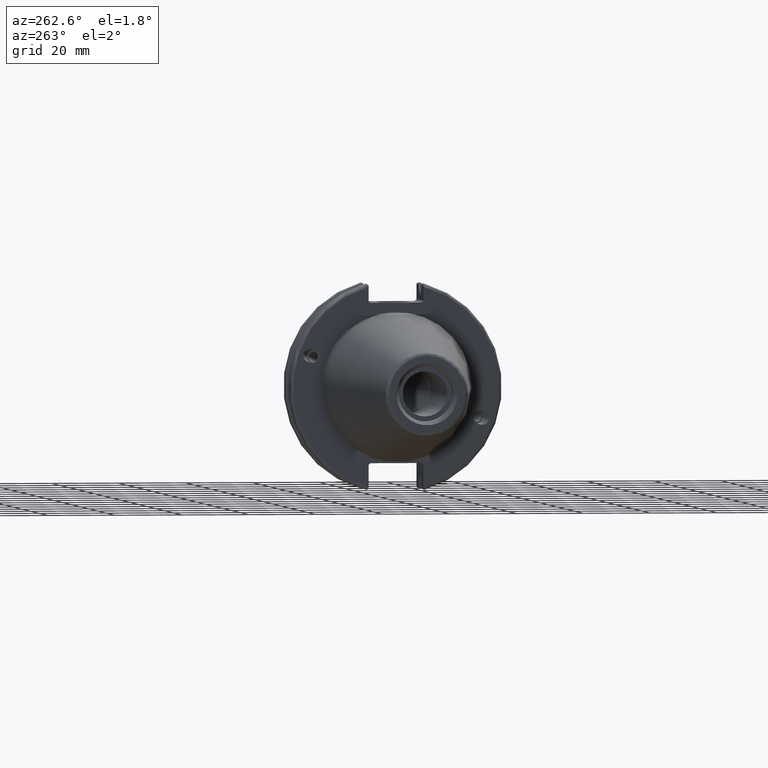
[diagram: clean part render]
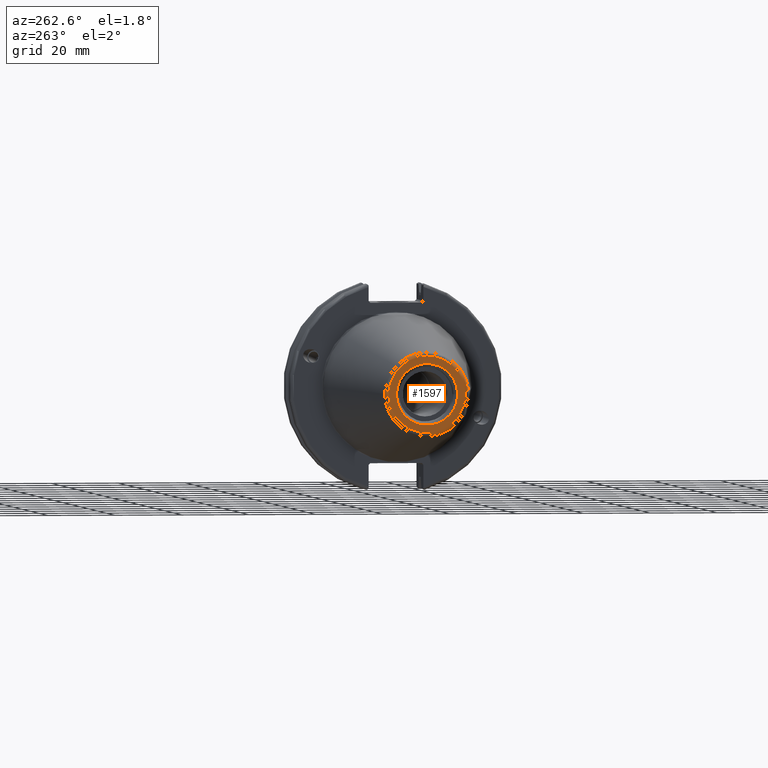
[diagram: same view with one face highlighted and labeled with its STEP entity id]
A machine part, auxiliary view. The second image highlights one B-rep face of the part: STEP entity #1597.
In plain terms, the highlighted planar face has unit normal (-1, 0, 0).
Its self-contained STEP definition (entity closure, byte-faithful):
#76=FACE_BOUND('',#343,.T.);
#99=PLANE('',#1793);
#236=FACE_OUTER_BOUND('',#342,.T.);
#342=EDGE_LOOP('',(#1387));
#343=EDGE_LOOP('',(#1388));
#632=CIRCLE('',#1792,11.4071305970304);
#633=CIRCLE('',#1794,9.15);
#791=VERTEX_POINT('',#3017);
#792=VERTEX_POINT('',#3021);
#1007=EDGE_CURVE('',#791,#791,#632,.T.);
#1008=EDGE_CURVE('',#792,#792,#633,.T.);
#1387=ORIENTED_EDGE('',*,*,#1007,.F.);
#1388=ORIENTED_EDGE('',*,*,#1008,.T.);
#1597=ADVANCED_FACE('',(#236,#76),#99,.T.);
#1792=AXIS2_PLACEMENT_3D('',#3019,#2200,#2201);
#1793=AXIS2_PLACEMENT_3D('',#3020,#2202,#2203);
#1794=AXIS2_PLACEMENT_3D('',#3022,#2204,#2205);
#2200=DIRECTION('center_axis',(1.,0.,0.));
#2201=DIRECTION('ref_axis',(0.,-1.,1.83697019872103E-16));
#2202=DIRECTION('center_axis',(-1.,0.,0.));
#2203=DIRECTION('ref_axis',(0.,0.,1.));
#2204=DIRECTION('center_axis',(1.,0.,0.));
#2205=DIRECTION('ref_axis',(0.,0.,-1.));
#3017=CARTESIAN_POINT('',(-68.25,-1.39697059731091E-15,11.4071305970304));
#3019=CARTESIAN_POINT('Origin',(-68.25,0.,0.));
#3020=CARTESIAN_POINT('Origin',(-68.25,12.271875,0.));
#3021=CARTESIAN_POINT('',(-68.25,-9.15,-1.12055182121983E-15));
#3022=CARTESIAN_POINT('Origin',(-68.25,0.,0.));